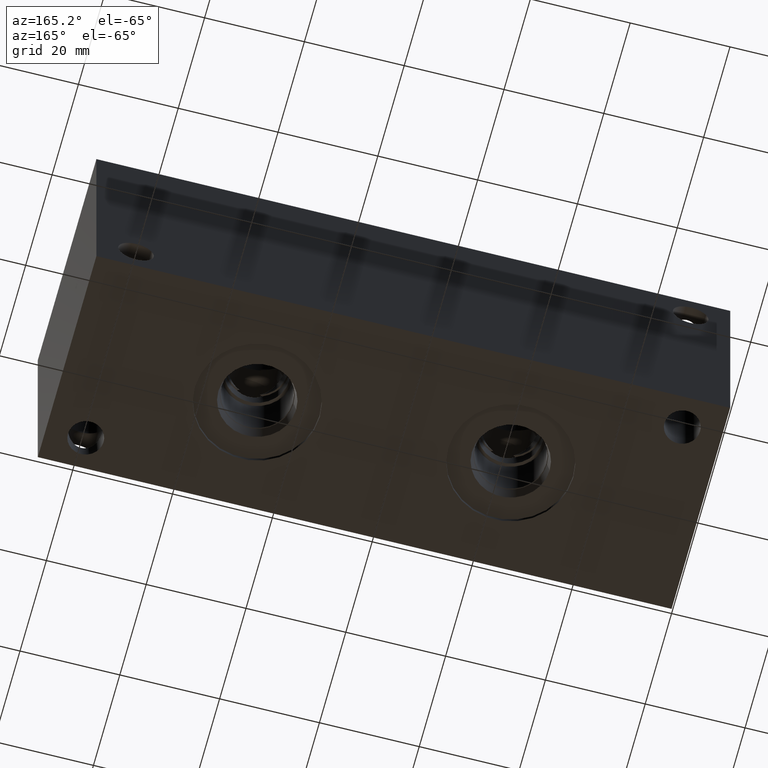
[diagram: clean part render]
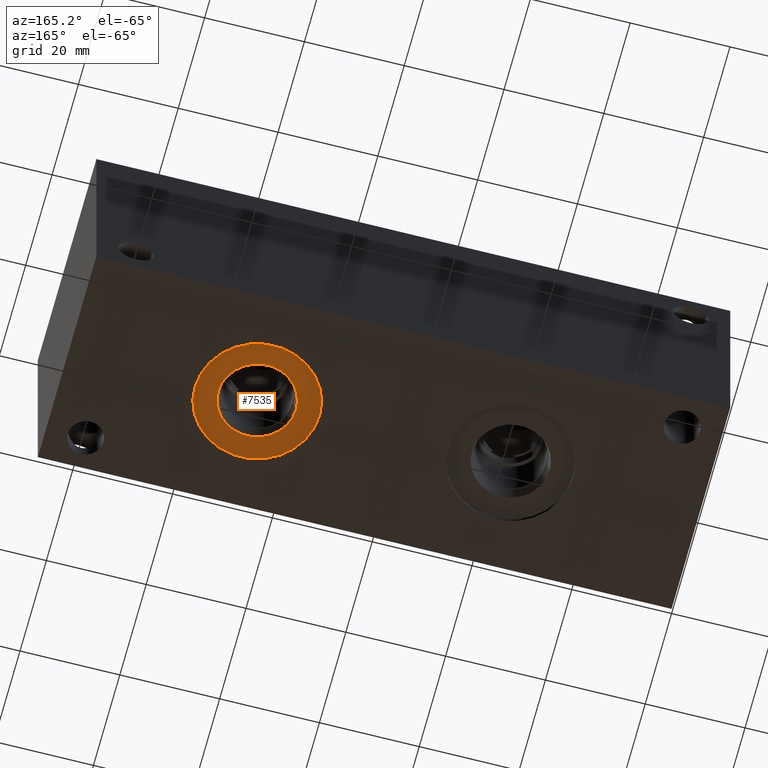
[diagram: same view with one face highlighted and labeled with its STEP entity id]
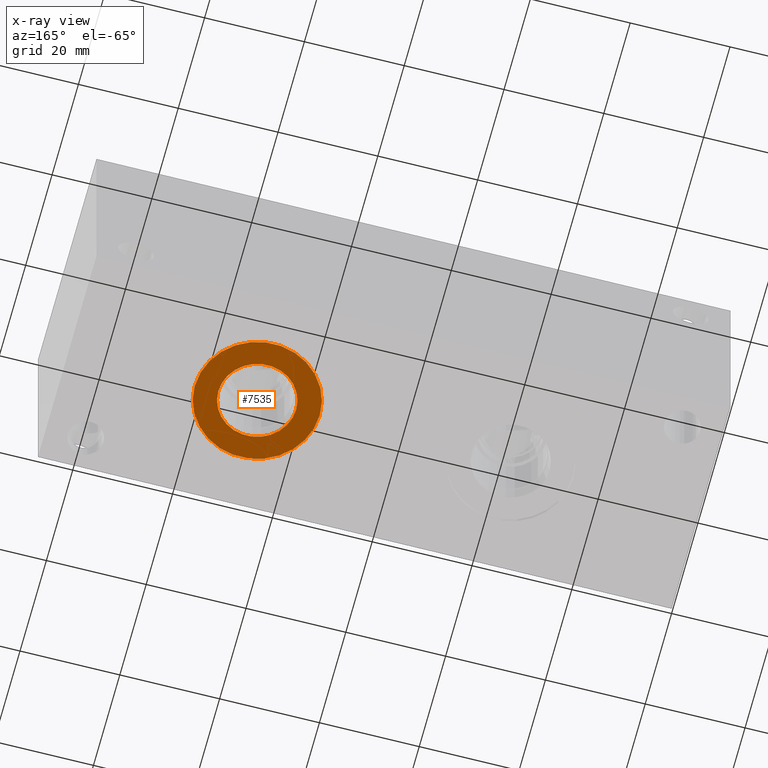
[diagram: x-ray of the same camera — body ghosted, the highlighted face saturated]
A machine part, auxiliary view. The second image highlights one B-rep face of the part: STEP entity #7535.
The next image is the same camera in x-ray: the body ghosted, the highlighted face saturated — about 0% of this face is hidden behind the body in this view.
In plain terms, the highlighted planar face has unit normal (0, 0, 1).
Its self-contained STEP definition (entity closure, byte-faithful):
#111=CIRCLE('',#7844,12.5095);
#112=CIRCLE('',#7845,12.5095);
#113=CIRCLE('',#7847,7.79780000000001);
#114=CIRCLE('',#7848,7.79780000000001);
#259=FACE_BOUND('',#1350,.T.);
#928=FACE_OUTER_BOUND('',#1349,.T.);
#1349=EDGE_LOOP('',(#6276,#6277));
#1350=EDGE_LOOP('',(#6278,#6279));
#3390=VERTEX_POINT('',#12721);
#3391=VERTEX_POINT('',#12723);
#3392=VERTEX_POINT('',#12727);
#3393=VERTEX_POINT('',#12728);
#4376=EDGE_CURVE('',#3390,#3391,#111,.T.);
#4377=EDGE_CURVE('',#3391,#3390,#112,.T.);
#4378=EDGE_CURVE('',#3392,#3393,#113,.T.);
#4379=EDGE_CURVE('',#3393,#3392,#114,.T.);
#6276=ORIENTED_EDGE('',*,*,#4377,.F.);
#6277=ORIENTED_EDGE('',*,*,#4376,.F.);
#6278=ORIENTED_EDGE('',*,*,#4378,.T.);
#6279=ORIENTED_EDGE('',*,*,#4379,.T.);
#6912=PLANE('',#7846);
#7535=ADVANCED_FACE('',(#928,#259),#6912,.F.);
#7844=AXIS2_PLACEMENT_3D('',#12724,#9118,#9119);
#7845=AXIS2_PLACEMENT_3D('',#12725,#9120,#9121);
#7846=AXIS2_PLACEMENT_3D('',#12726,#9122,#9123);
#7847=AXIS2_PLACEMENT_3D('',#12729,#9124,#9125);
#7848=AXIS2_PLACEMENT_3D('',#12730,#9126,#9127);
#9118=DIRECTION('center_axis',(0.,0.,1.));
#9119=DIRECTION('ref_axis',(1.,0.,0.));
#9120=DIRECTION('center_axis',(0.,0.,1.));
#9121=DIRECTION('ref_axis',(1.,0.,0.));
#9122=DIRECTION('center_axis',(0.,0.,1.));
#9123=DIRECTION('ref_axis',(1.,0.,0.));
#9124=DIRECTION('center_axis',(0.,0.,1.));
#9125=DIRECTION('ref_axis',(1.,0.,0.));
#9126=DIRECTION('center_axis',(0.,0.,1.));
#9127=DIRECTION('ref_axis',(1.,0.,0.));
#12721=CARTESIAN_POINT('',(76.3905,22.225,0.7874));
#12723=CARTESIAN_POINT('',(101.4095,22.225,0.7874));
#12724=CARTESIAN_POINT('Origin',(88.9,22.225,0.7874));
#12725=CARTESIAN_POINT('Origin',(88.9,22.225,0.7874));
#12726=CARTESIAN_POINT('Origin',(96.6978,22.225,0.7874));
#12727=CARTESIAN_POINT('',(96.6978,22.225,0.7874));
#12728=CARTESIAN_POINT('',(81.1022,22.225,0.787399999999998));
#12729=CARTESIAN_POINT('Origin',(88.9,22.225,0.7874));
#12730=CARTESIAN_POINT('Origin',(88.9,22.225,0.7874));